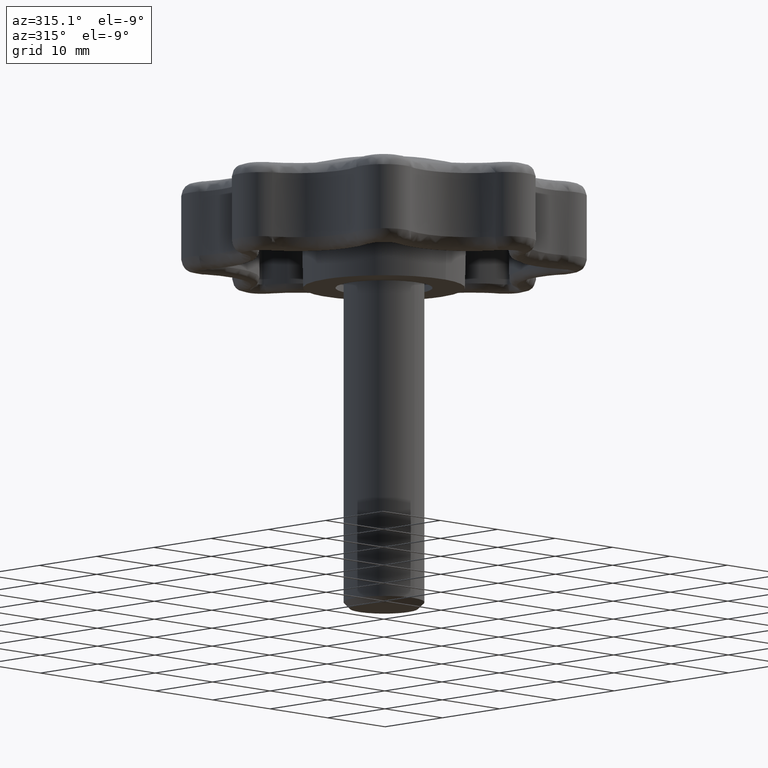
[diagram: clean part render]
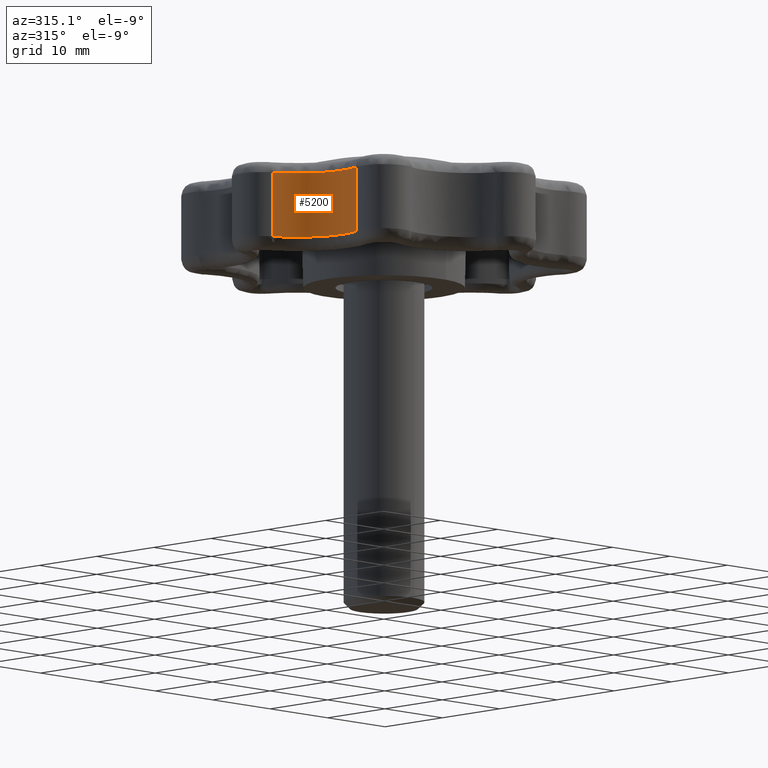
[diagram: same view with one face highlighted and labeled with its STEP entity id]
A machine part, auxiliary view. The second image highlights one B-rep face of the part: STEP entity #5200.
In plain terms, the highlighted face is a freeform B-spline surface patch.
Its self-contained STEP definition (entity closure, byte-faithful):
#2599=CARTESIAN_POINT('',(-18.466466355737001,-13.749603145040201,3.500000000000060));
#2600=VERTEX_POINT('',#2599);
#2703=CARTESIAN_POINT('',(-22.780203273266000,-3.335321488336975,3.500000000000060));
#2704=VERTEX_POINT('',#2703);
#2722=CARTESIAN_POINT('',(-22.780203273266000,-3.335321488336962,3.500000000000060));
#2723=CARTESIAN_POINT('',(-15.454068836910663,-6.401282135556512,3.500000000000060));
#2724=CARTESIAN_POINT('',(-18.466466355736969,-13.749603145040210,3.500000000000060));
#2732=(BOUNDED_CURVE()B_SPLINE_CURVE(2,(#2722,#2723,#2724),.UNSPECIFIED.,.F.,.U.)CURVE()GEOMETRIC_REPRESENTATION_ITEM()QUASI_UNIFORM_CURVE()RATIONAL_B_SPLINE_CURVE((1.0,0.709683059159381,1.0))REPRESENTATION_ITEM(''));
#2733=EDGE_CURVE('',#2704,#2600,#2732,.T.);
#3819=CARTESIAN_POINT('',(-18.466466355737001,-13.749603145040201,11.500000000000000));
#3820=VERTEX_POINT('',#3819);
#3951=CARTESIAN_POINT('',(-22.780203273266000,-3.335321488336975,11.500000000000000));
#3952=VERTEX_POINT('',#3951);
#3966=CARTESIAN_POINT('',(-18.466466355736969,-13.749603145040210,11.500000000000000));
#3967=CARTESIAN_POINT('',(-15.454068836910670,-6.401282135556518,11.500000000000000));
#3968=CARTESIAN_POINT('',(-22.780203273265990,-3.335321488336967,11.500000000000000));
#3976=(BOUNDED_CURVE()B_SPLINE_CURVE(2,(#3966,#3967,#3968),.UNSPECIFIED.,.F.,.U.)CURVE()GEOMETRIC_REPRESENTATION_ITEM()QUASI_UNIFORM_CURVE()RATIONAL_B_SPLINE_CURVE((1.0,0.709683059159382,1.0))REPRESENTATION_ITEM(''));
#3977=EDGE_CURVE('',#3820,#3952,#3976,.T.);
#5172=CARTESIAN_POINT('',(-18.548436033610908,-13.942329310980170,11.699999999999999));
#5173=CARTESIAN_POINT('',(-18.548436033610908,-13.942329310980170,3.295000000000060));
#5174=CARTESIAN_POINT('',(-15.087692760977376,-6.092384494850448,11.700000000000001));
#5175=CARTESIAN_POINT('',(-15.087692760977376,-6.092384494850448,3.295000000000061));
#5176=CARTESIAN_POINT('',(-23.159924753304470,-3.187655888351893,11.699999999999999));
#5177=CARTESIAN_POINT('',(-23.159924753304470,-3.187655888351893,3.295000000000060));
#5185=(BOUNDED_SURFACE()B_SPLINE_SURFACE(1,2,((#5172,#5174,#5176),(#5173,#5175,#5177)),.UNSPECIFIED.,.F.,.F.,.U.)B_SPLINE_SURFACE_WITH_KNOTS((2,2),(3,3),(0.0,8.404999999999941),(0.0,13.913995998749870),.UNSPECIFIED.)GEOMETRIC_REPRESENTATION_ITEM()RATIONAL_B_SPLINE_SURFACE(((1.0,0.681998360062498,1.0),(1.0,0.681998360062498,1.0)))REPRESENTATION_ITEM('')SURFACE());
#5186=CARTESIAN_POINT('',(-22.780203273266000,-3.335321488336975,11.500000000000000));
#5187=CARTESIAN_POINT('',(-22.780203273266000,-3.335321488336975,3.500000000000060));
#5188=QUASI_UNIFORM_CURVE('',1,(#5186,#5187),.UNSPECIFIED.,.F.,.U.);
#5189=EDGE_CURVE('',#3952,#2704,#5188,.T.);
#5190=ORIENTED_EDGE('',*,*,#5189,.T.);
#5191=ORIENTED_EDGE('',*,*,#2733,.T.);
#5192=CARTESIAN_POINT('',(-18.466466355737001,-13.749603145040201,11.500000000000000));
#5193=CARTESIAN_POINT('',(-18.466466355737001,-13.749603145040201,3.500000000000060));
#5194=QUASI_UNIFORM_CURVE('',1,(#5192,#5193),.UNSPECIFIED.,.F.,.U.);
#5195=EDGE_CURVE('',#3820,#2600,#5194,.T.);
#5196=ORIENTED_EDGE('',*,*,#5195,.F.);
#5197=ORIENTED_EDGE('',*,*,#3977,.T.);
#5198=EDGE_LOOP('',(#5190,#5191,#5196,#5197));
#5199=FACE_OUTER_BOUND('',#5198,.T.);
#5200=ADVANCED_FACE('',(#5199),#5185,.F.);